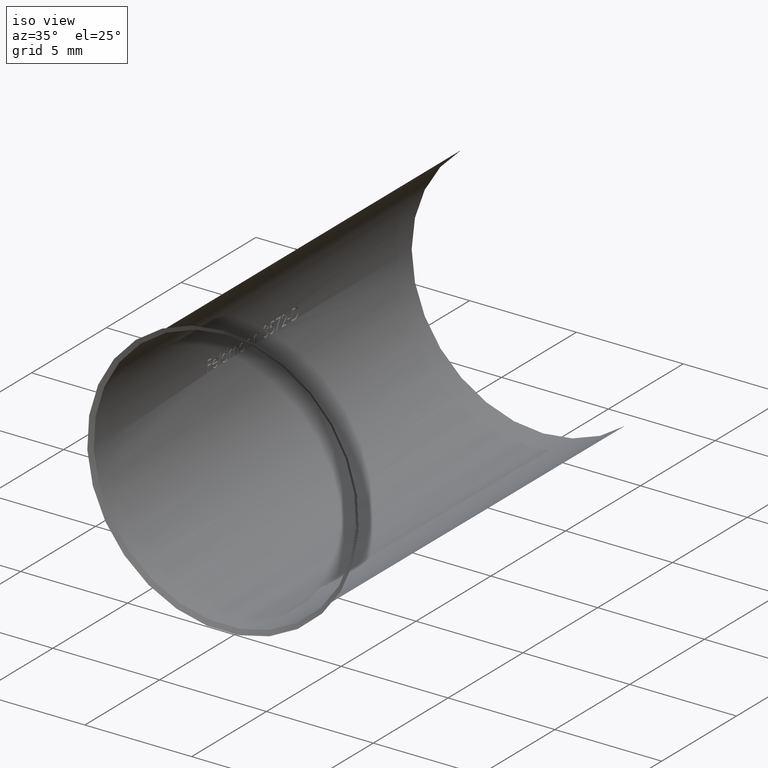
[diagram: clean part render]
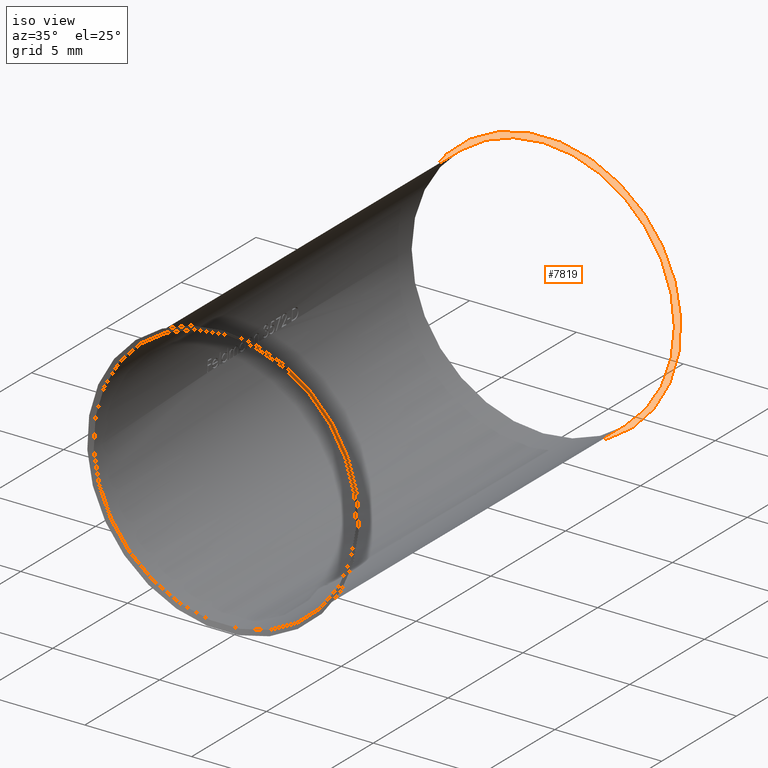
[diagram: same view with one face highlighted and labeled with its STEP entity id]
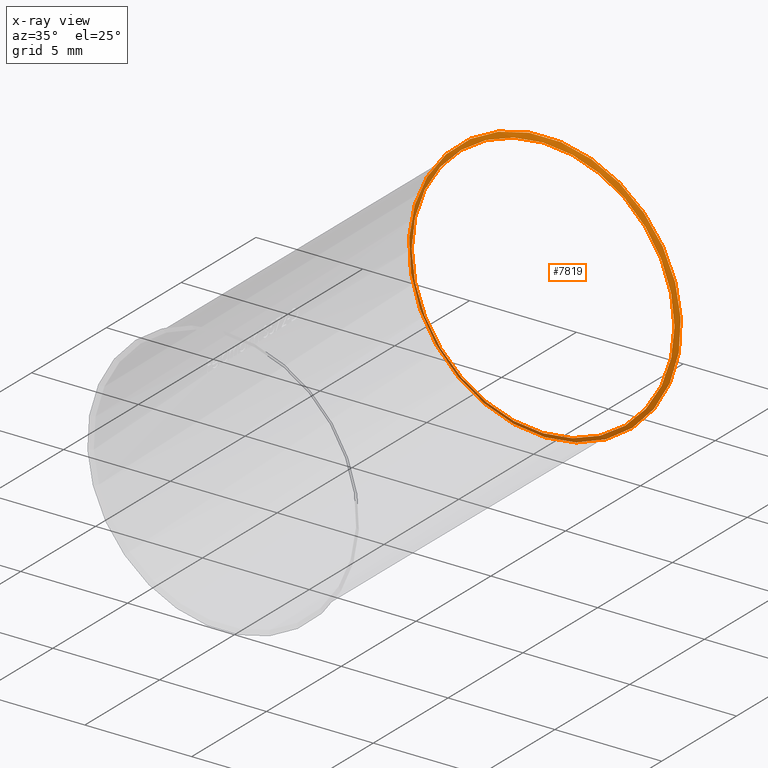
[diagram: x-ray of the same camera — body ghosted, the highlighted face saturated]
A machine part, iso view. The second image highlights one B-rep face of the part: STEP entity #7819.
The next image is the same camera in x-ray: the body ghosted, the highlighted face saturated — about 0% of this face is hidden behind the body in this view.
In plain terms, the highlighted conical surface has half-angle 59.736 deg.
Its self-contained STEP definition (entity closure, byte-faithful):
#644 = CARTESIAN_POINT ( 'NONE',  ( 1.836970198721029600E-015, 10.63243998375364200, 0.0000000000000000000 ) ) ;
#1404 = DIRECTION ( 'NONE',  ( 0.0000000000000000000, 1.000000000000000000, 0.0000000000000000000 ) ) ;
#1965 = CIRCLE ( 'NONE', #4835, 6.150000000000001200 ) ;
#2810 = DIRECTION ( 'NONE',  ( 0.0000000000000000000, 0.0000000000000000000, -1.000000000000000000 ) ) ;
#3314 = DIRECTION ( 'NONE',  ( -0.0000000000000000000, -1.000000000000000000, -0.0000000000000000000 ) ) ;
#4001 = EDGE_CURVE ( 'NONE', #4987, #4987, #9018, .T. ) ;
#4132 = DIRECTION ( 'NONE',  ( 0.0000000000000000000, 1.000000000000000000, 0.0000000000000000000 ) ) ;
#4440 = EDGE_CURVE ( 'NONE', #4537, #4537, #1965, .T. ) ;
#4537 = VERTEX_POINT ( 'NONE', #7992 ) ;
#4546 = CONICAL_SURFACE ( 'NONE', #6277, 6.150000000000001200, 1.042590935681722500 ) ;
#4835 = AXIS2_PLACEMENT_3D ( 'NONE', #644, #1404, #2810 ) ;
#4891 = AXIS2_PLACEMENT_3D ( 'NONE', #5457, #3314, #7664 ) ;
#4987 = VERTEX_POINT ( 'NONE', #5926 ) ;
#5457 = CARTESIAN_POINT ( 'NONE',  ( 0.0000000000000000000, 10.75799785047785500, 0.0000000000000000000 ) ) ;
#5526 = ORIENTED_EDGE ( 'NONE', *, *, #4001, .F. ) ;
#5926 = CARTESIAN_POINT ( 'NONE',  ( 0.0000000000000000000, 10.75799785047785500, -6.365177314821158600 ) ) ;
#6154 = DIRECTION ( 'NONE',  ( 0.0000000000000000000, 0.0000000000000000000, 1.000000000000000000 ) ) ;
#6277 = AXIS2_PLACEMENT_3D ( 'NONE', #8382, #4132, #6154 ) ;
#7096 = FACE_BOUND ( 'NONE', #7189, .T. ) ;
#7189 = EDGE_LOOP ( 'NONE', ( #7762 ) ) ;
#7664 = DIRECTION ( 'NONE',  ( 0.0000000000000000000, 0.0000000000000000000, -1.000000000000000000 ) ) ;
#7762 = ORIENTED_EDGE ( 'NONE', *, *, #4440, .F. ) ;
#7819 = ADVANCED_FACE ( 'NONE', ( #8444, #7096 ), #4546, .F. ) ;
#7992 = CARTESIAN_POINT ( 'NONE',  ( 1.836970198721029600E-015, 10.63243998375364200, -6.150000000000001200 ) ) ;
#8382 = CARTESIAN_POINT ( 'NONE',  ( 1.836970198721029600E-015, 10.63243998375364200, 0.0000000000000000000 ) ) ;
#8444 = FACE_OUTER_BOUND ( 'NONE', #9026, .T. ) ;
#9018 = CIRCLE ( 'NONE', #4891, 6.365177314821158600 ) ;
#9026 = EDGE_LOOP ( 'NONE', ( #5526 ) ) ;